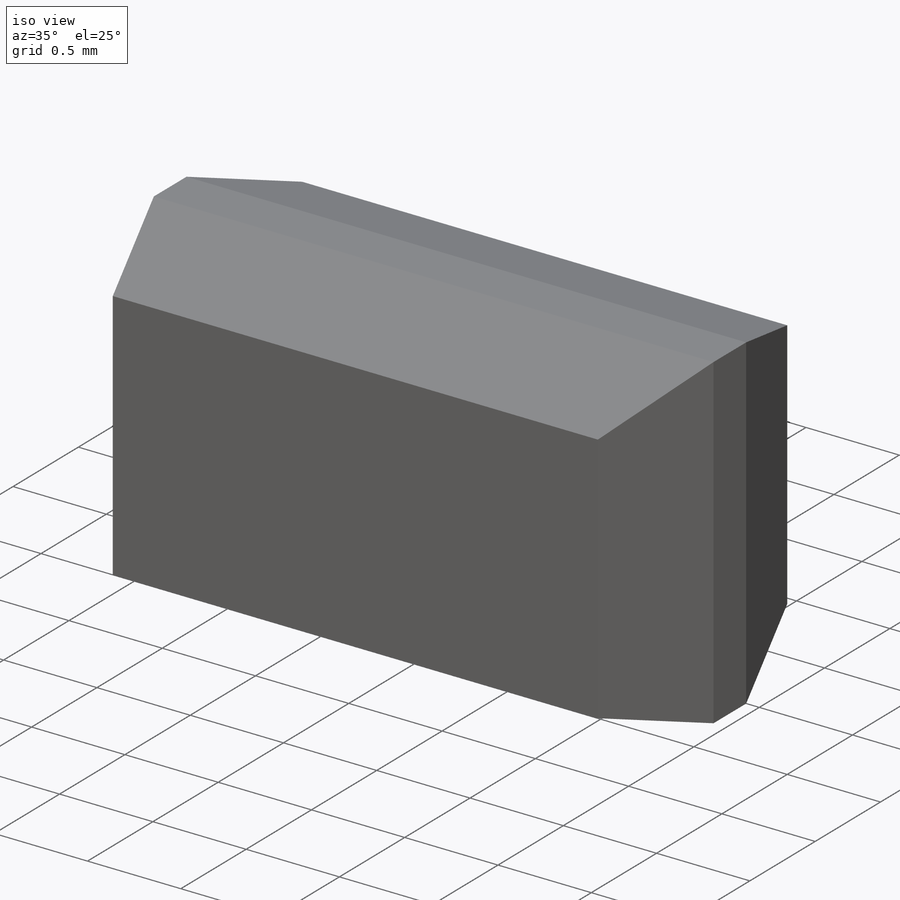
[diagram: iso view]
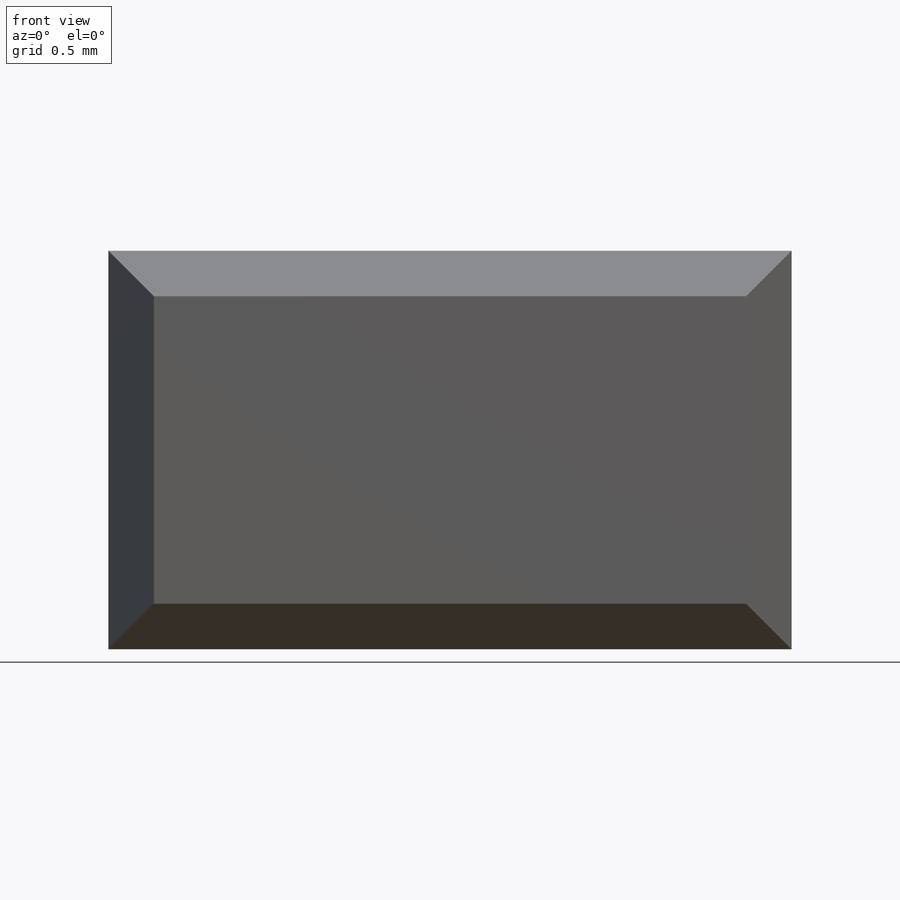
[diagram: front view]
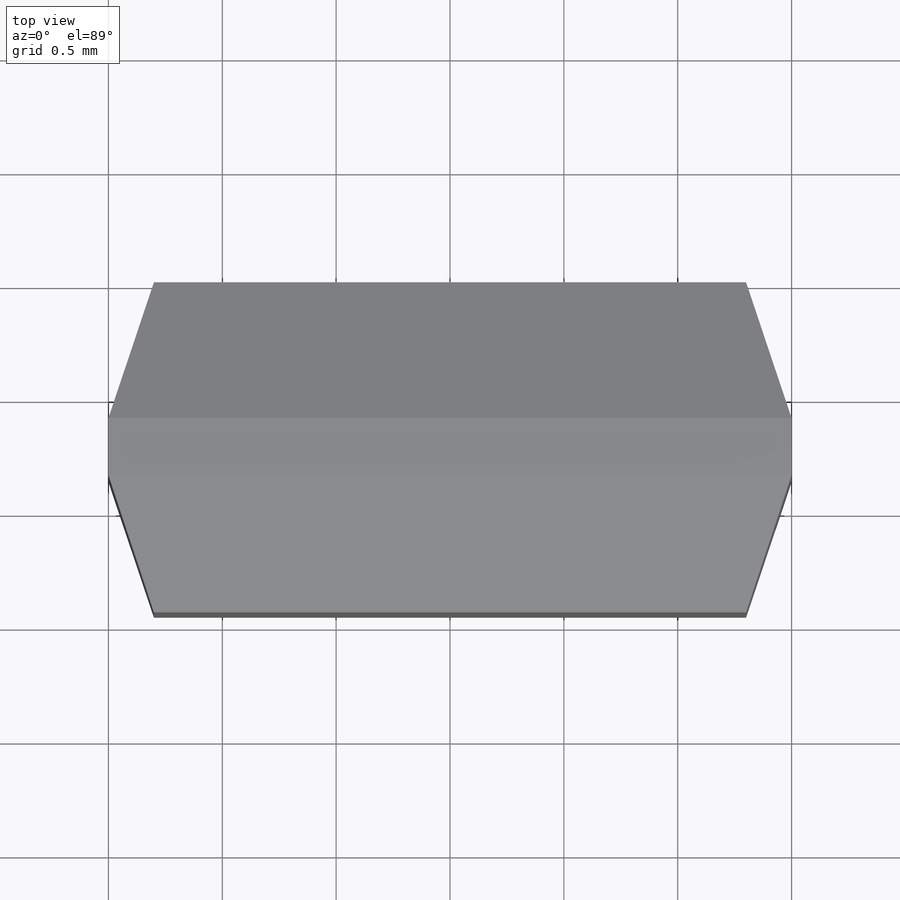
[diagram: top view]
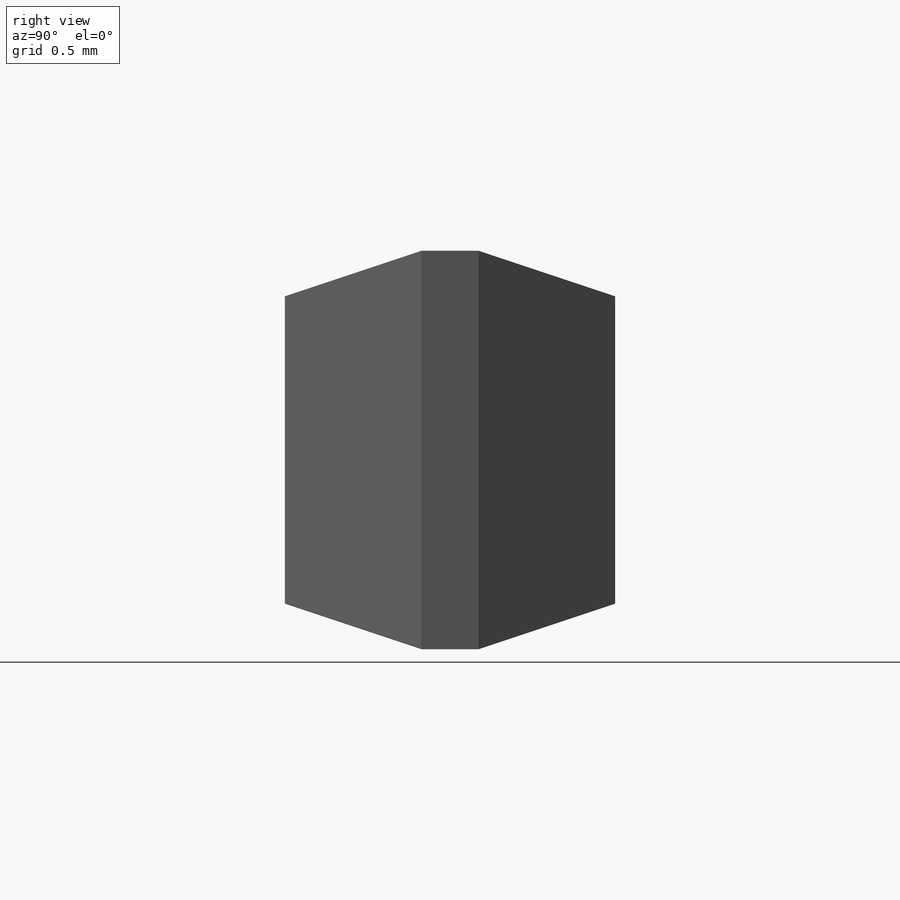
[diagram: right view]
SOLIDWORKS PART (.sldprt)
format: sldprt  version: not decoded by parser v0  size: 143,872 bytes
history: native  units: mm
features: chamfer x8, plane x3, material x1, sketch x1, extrude x1 (+12 scaffold rows collapsed)
feature tree (26):
  scaffold x12  (default folders/planes/origin — collapsed)
  material  "Matériau <non spécifié>"
  plane  "Plan de face"
  plane  "Plan de dessus"
  plane  "Plan de droite"
  sketch  "Esquisse1"  dims[D1=1.75mm D2=3.0mm]
  extrude  "Boss.-Extru.1"  Depth=1.45mm
  chamfer  "Chanfrein1"  Distance=0.6mm
  chamfer  "Chanfrein2"  Distance=0.2mm
  chamfer  "Chanfrein3"  Distance=0.6mm
  chamfer  "Chanfrein4"  Distance=0.2mm
  chamfer  "Chanfrein5"  Distance=0.6mm
  chamfer  "Chanfrein6"  Distance=0.2mm
  chamfer  "Chanfrein7"  Distance=0.6mm
  chamfer  "Chanfrein8"  Distance=0.2mm
decode coverage: 10 of 10 modeling features carry decoded parameters
note: suppression state not decoded; provenance and decode notes live in map.json
